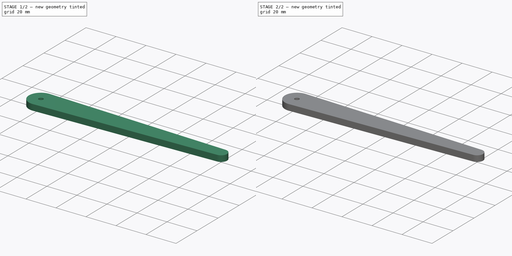
[diagram: build sequence overview — one tinted view per stage of 2, left to right]
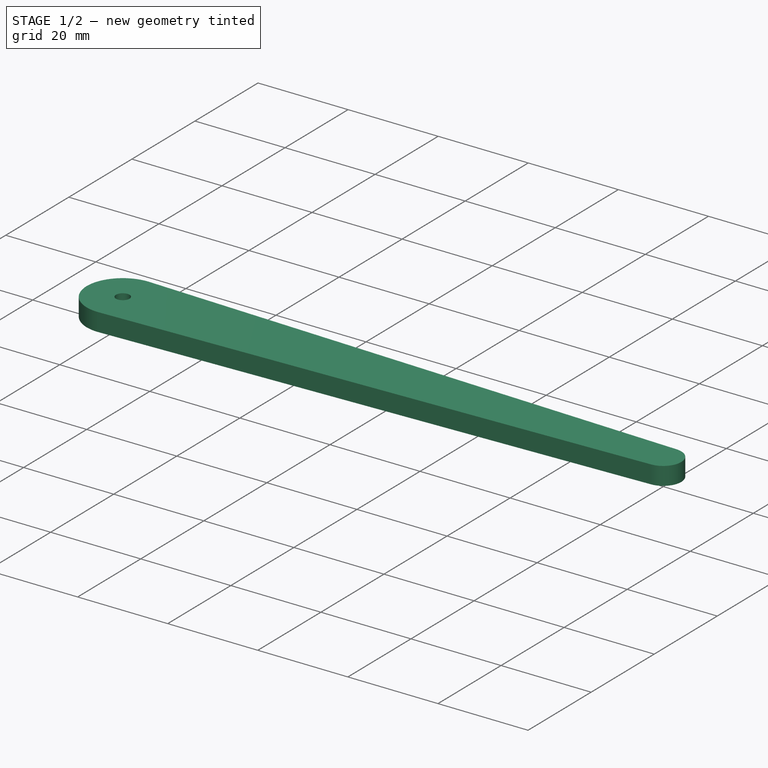
[diagram: stage 1 of 2 — iso view after this stage's code; geometry added in this stage tinted green]
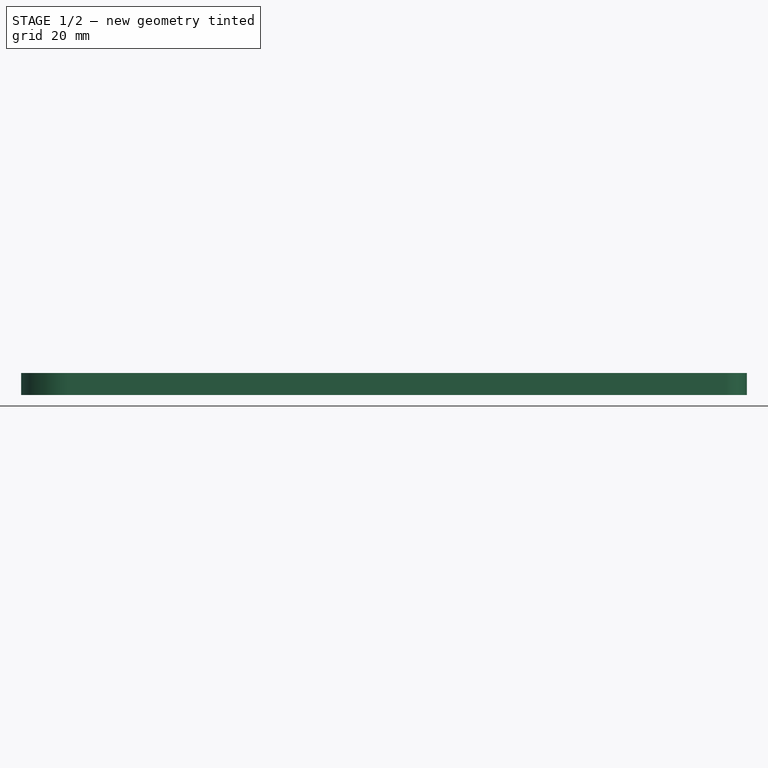
[diagram: stage 1 of 2 — front view after this stage's code; geometry added in this stage tinted green]
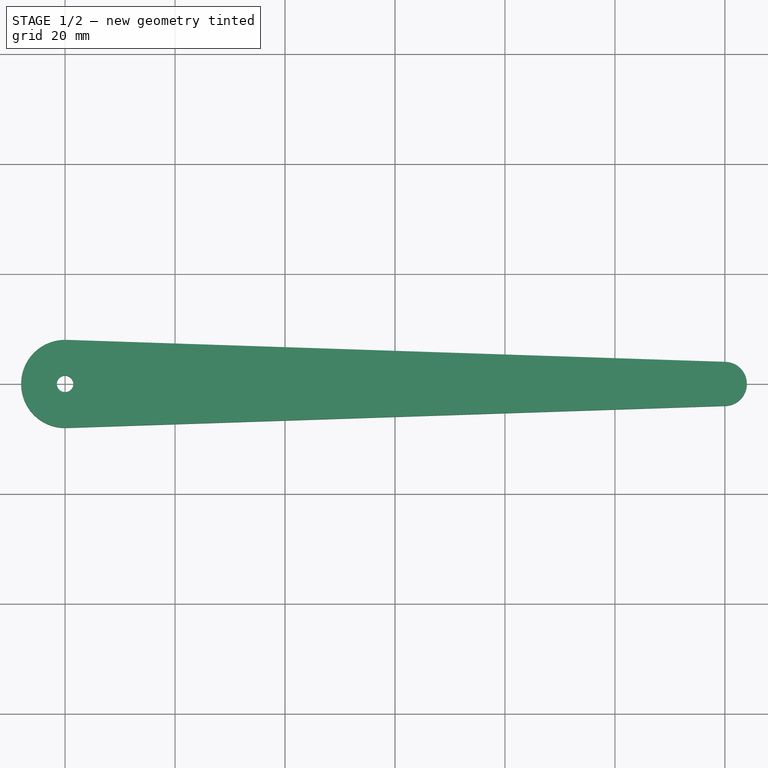
[diagram: stage 1 of 2 — top view after this stage's code; geometry added in this stage tinted green]
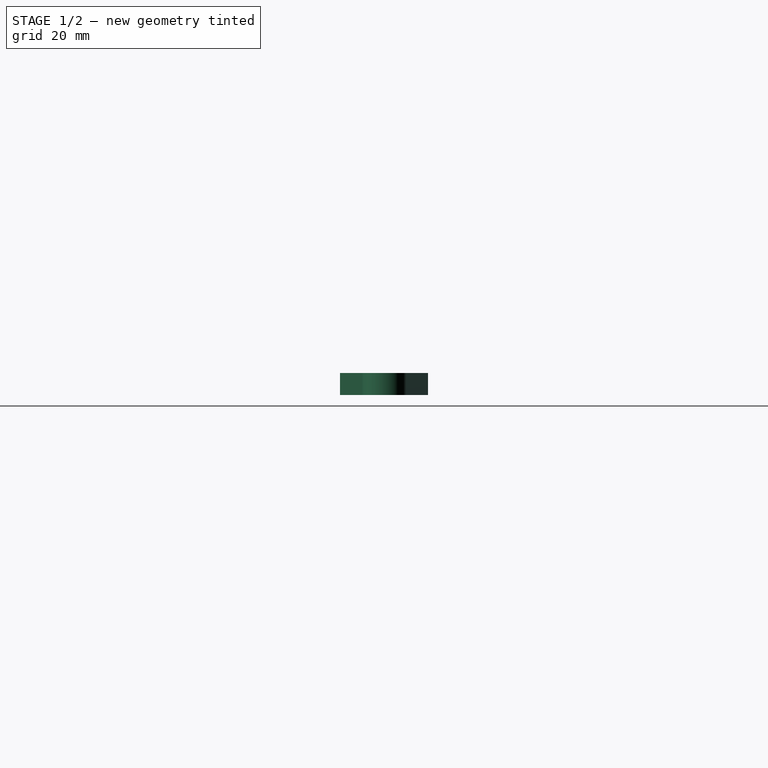
[diagram: stage 1 of 2 — right view after this stage's code; geometry added in this stage tinted green]
FCSTD DOCUMENT  (FreeCAD 0.17R13541 (Git))
Label: Barrera Parking
License: CreativeCommons Attribution
LicenseURL: http://creativecommons.org/licenses/by/4.0/
objects: Part::Feature×3, Sketcher::SketchObject×2, Part::Offset×1, PartDesign::Pad×1, PartDesign::Pocket×1, PartDesign::Body×1, Part::Cut×1, App::DocumentObjectGroup×1
note: 12 computed .brp shape members not serialized (recipe doc carries the construction recipe); baked Part::Feature solids carry a one-line shape summary decoded from their .brp

FEATURE [Sketcher::SketchObject] Sketch  label="Sketch barrera"
  MapMode = 5
  Support = -> [XY_Plane]
  sketch-geometry (4):
    g0: ArcOfCircle CenterX=0 CenterY=0 CenterZ=0 NormalX=0 NormalY=0 NormalZ=1 AngleXU=0 Radius=8 StartAngle=1.53746 EndAngle=4.74573
    g1: ArcOfCircle CenterX=120 CenterY=0 CenterZ=0 NormalX=0 NormalY=0 NormalZ=1 AngleXU=0 Radius=4 StartAngle=4.74573 EndAngle=7.82064
    g2: LineSegment StartX=0.266667 StartY=7.99555 StartZ=0 EndX=120.133 EndY=3.99778 EndZ=0
    g3: LineSegment StartX=0.266667 StartY=-7.99555 StartZ=0 EndX=120.133 EndY=-3.99778 EndZ=0
  constraints (13):
    c: Coincident(g0,g-1)
    c: PointOnObject(g1,g-1)
    c: Radius(g0) = 8
    c: Radius(g1) = 4
    c: DistanceX(g-1,g1) = 120
    c: Coincident(g1,g3)
    c: Coincident(g1,g2)
    c: Coincident(g0,g2)
    c: Coincident(g0,g3)
    c: Tangent(g0,g2) = 1.5708
    c: Tangent(g0,g3) = -1.5708
    c: Tangent(g1,g2) = 1.5708
    c: Tangent(g1,g3) = -1.5708
FEATURE [PartDesign::Pad] Pad  label="Barrera aprking bruto"
  Length = 4
  Length2 = 100
  Profile = -> Sketch
  Type = 0
FEATURE [Sketcher::SketchObject] Sketch001  label="Sketch taladro servo"
  MapMode = 5
  Placement = pos=(0,0,4) rot=(0,0,1;0rad)
  Support = -> [Pad]
  sketch-geometry (1):
    g0: Circle CenterX=0 CenterY=0 CenterZ=0 NormalX=0 NormalY=0 NormalZ=1 AngleXU=0 Radius=1.5
  constraints (2):
    c: Coincident(g0,g-1)
    c: Radius(g0) = 1.5
FEATURE [PartDesign::Pocket] Pocket  label="Hueco dn3 tornillo servo"
  BaseFeature = -> Pad
  Length = 5
  Length2 = 100
  Profile = -> Sketch001
  Type = 0
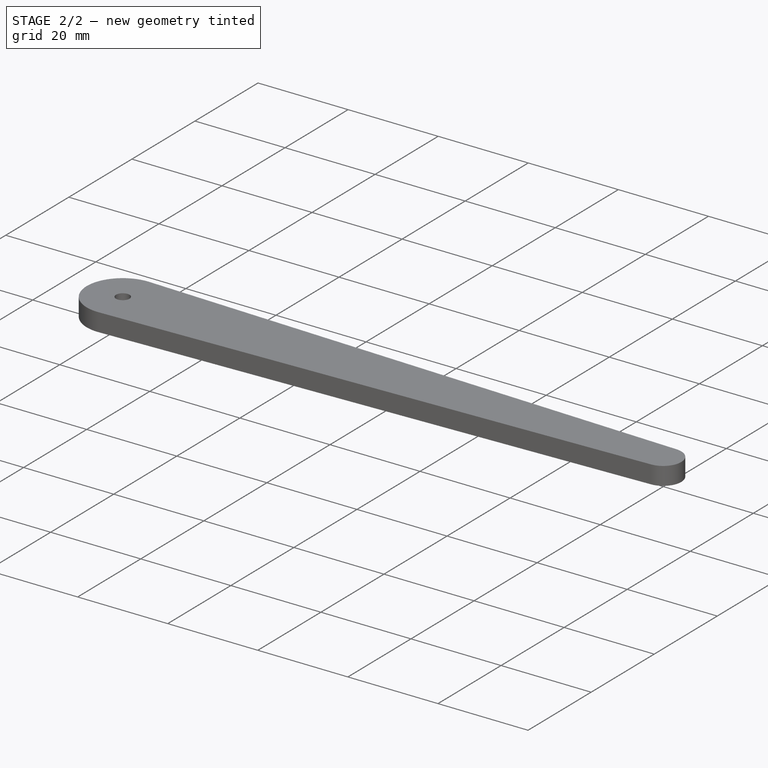
[diagram: stage 2 of 2 — iso view after this stage's code; geometry added in this stage tinted green]
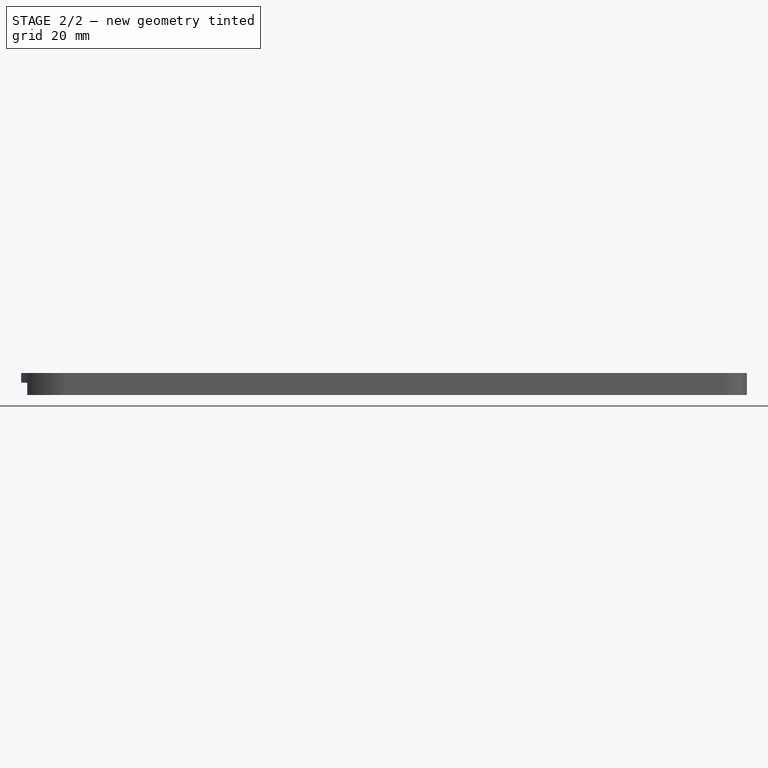
[diagram: stage 2 of 2 — front view after this stage's code; geometry added in this stage tinted green]
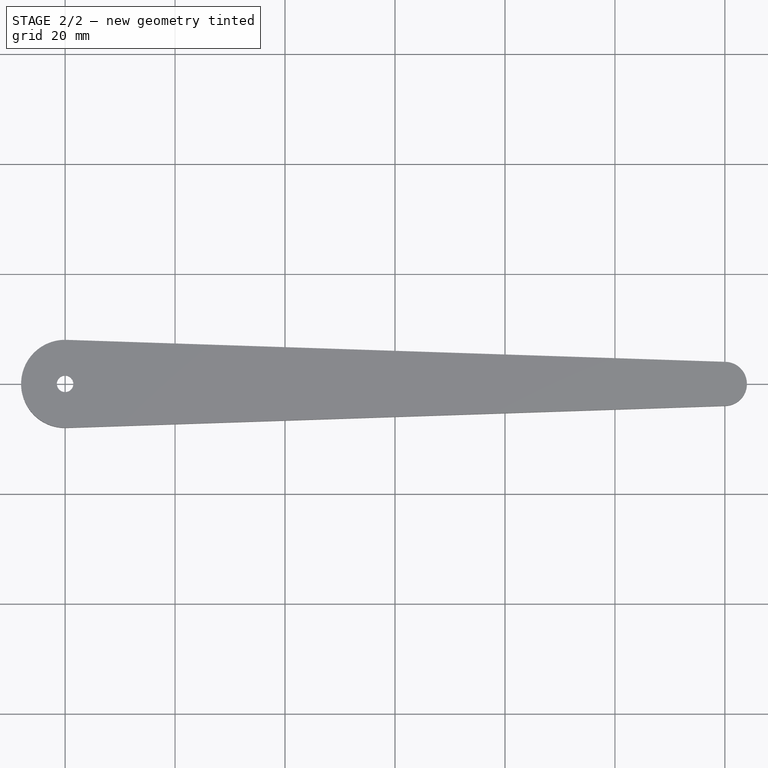
[diagram: stage 2 of 2 — top view after this stage's code; geometry added in this stage tinted green]
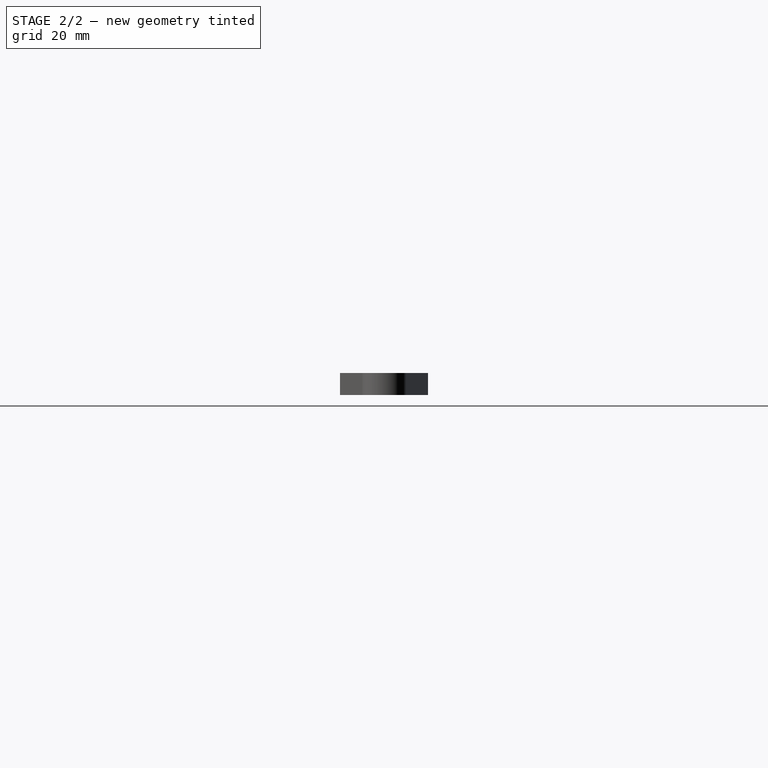
[diagram: stage 2 of 2 — right view after this stage's code; geometry added in this stage tinted green]
FEATURE [Part::Feature] Pad001001  label="Pala doble maciza"
  shape: bbox 45 x 9 x 6 mm, 13 faces (baked)
FEATURE [Part::Offset] Offset  label="Offset pala doble 0.25"
  Fill = false
  Intersection = false
  Join = 0
  Mode = 0
  Placement = pos=(0,0,2) rot=(1,0,0;3.14159rad)
  SelfIntersection = false
  Source = -> Pad001001
  Value = 0.25
FEATURE [PartDesign::Body] Body
  Group = -> [Sketch,Pad,Sketch001,Pocket]
  Origin = -> Origin
  Tip = -> Pocket
FEATURE [Part::Cut] Cut  label="Master Barrera con hueco para servo"
  Base = -> Pocket
  Refine = true
  Tool = -> Offset
FEATURE [Part::Feature] Pocket003001  label="Pala doble"
  Placement = pos=(0,0,2) rot=(1,0,0;3.14159rad)
  shape: bbox 45 x 9 x 6 mm, 28 faces (baked)
FEATURE [Part::Feature] Cut001  label="Barrera con hueco para servo"
  shape: bbox 132 x 16 x 4.002 mm, 22 faces (baked)
FEATURE [App::DocumentObjectGroup] Grupo  label="Copias simples"
  Group = -> [Pocket003001,Cut001]
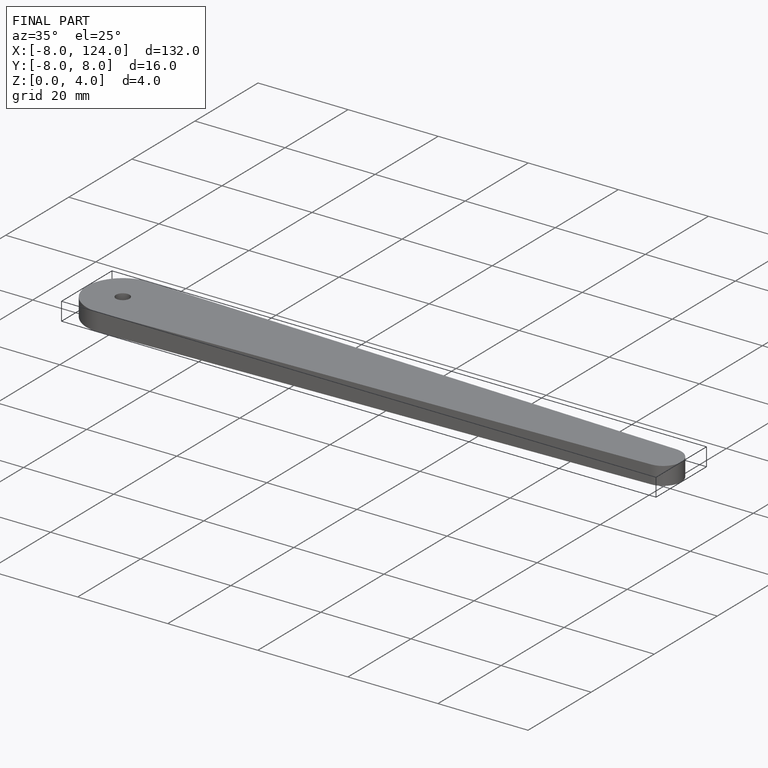
[diagram: finished part — iso view with bounding-box wireframe]
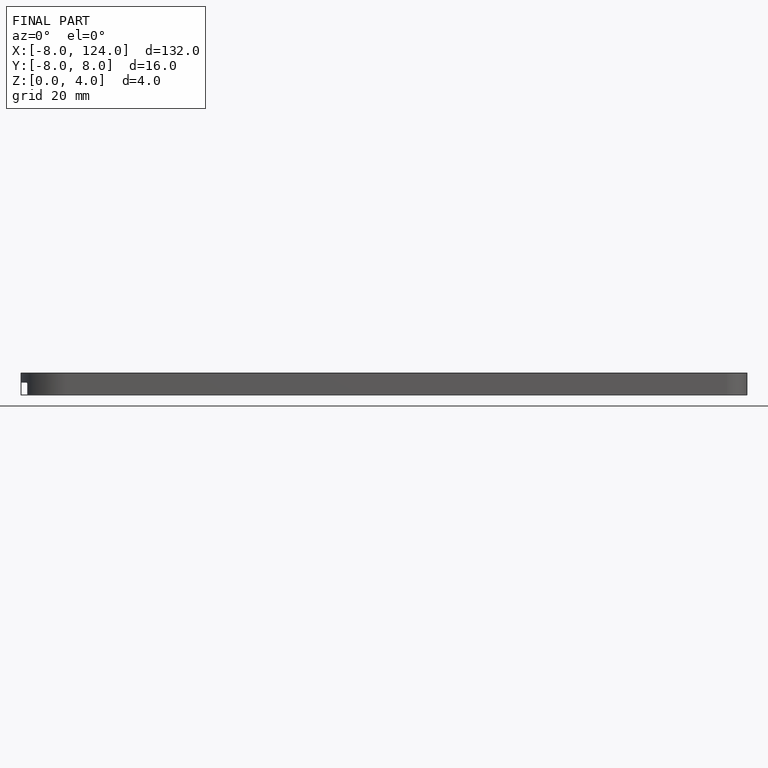
[diagram: finished part — front view with bounding-box wireframe]
